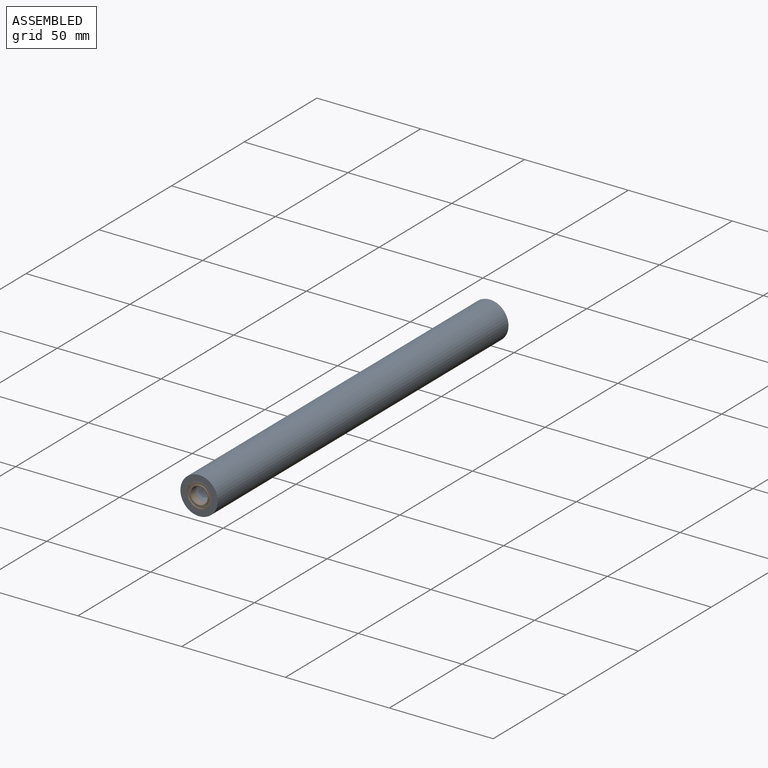
[diagram: assembled view]
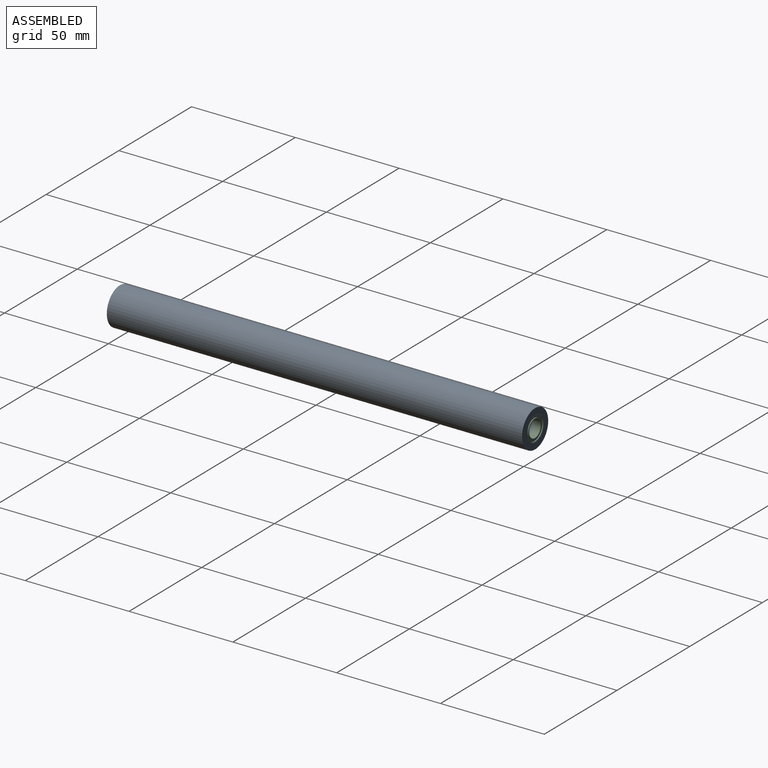
[diagram: assembled view, second angle]
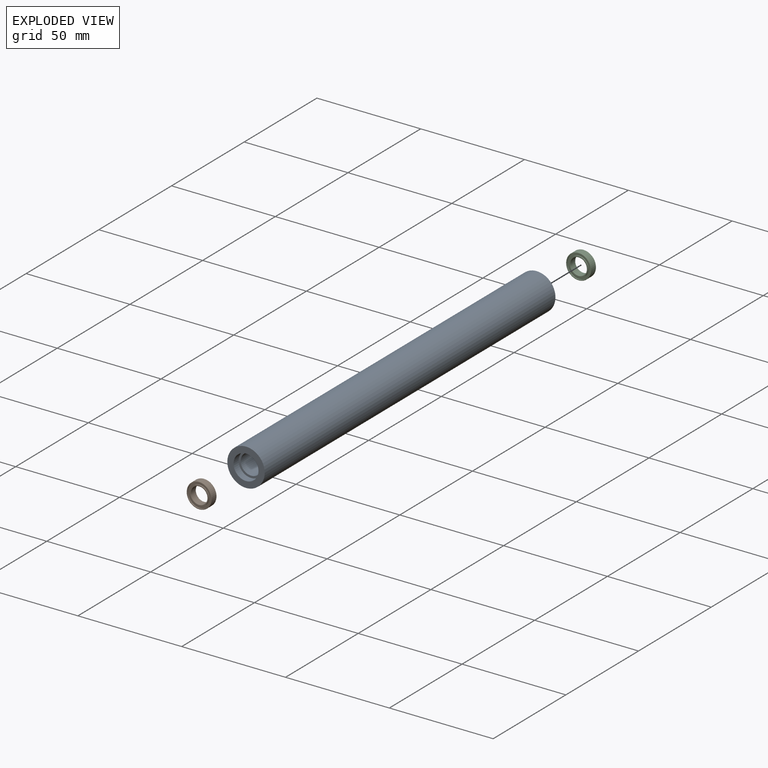
[diagram: exploded view]
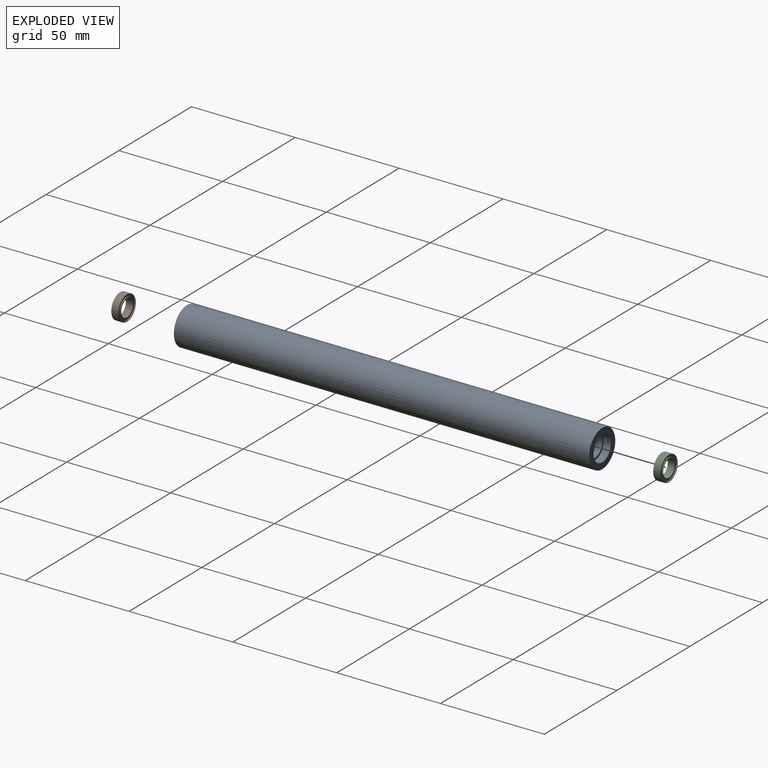
[diagram: exploded view, second angle]
ASSEMBLY  parts=3 mates=4
PART A: 12 faces, bbox 18x200x18 mm
  f0: plane 18x18mm, normal (0,-1,0), area 141.4mm2, adj f1,f2,f10,f11
  f1: cylinder r=9mm len=200mm, axis (0,-1,0), area 5654.9mm2, adj f0,f2,f3
  f2: cylinder r=9mm len=200mm, axis (0,-1,0), area 5654.9mm2, adj f0,f1,f3
  f3: plane 18x18mm, normal (0,1,0), area 141.4mm2, adj f1,f2,f4,f5
  f4: cylinder r=6mm len=12mm, axis (0,-1,0), area 66mm2, adj f3,f5,f6
  f5: cylinder r=6mm len=12mm, axis (0,-1,0), area 66mm2, adj f3,f4,f6
  f6: plane 12x12mm, normal (0,1,0), area 34.6mm2, adj f4,f5,f7,f8
  f7: cylinder r=5mm len=193mm, axis (0,-1,0), area 3031.6mm2, adj f6,f8,f9
  f8: cylinder r=5mm len=193mm, axis (0,-1,0), area 3031.6mm2, adj f6,f7,f9
  f9: plane 12x12mm, normal (0,-1,0), area 34.6mm2, adj f7,f8,f10,f11
  f10: cylinder r=6mm len=12mm, axis (0,-1,0), area 66mm2, adj f0,f9,f11
  f11: cylinder r=6mm len=12mm, axis (0,-1,0), area 66mm2, adj f0,f9,f10
PART B: 26 faces, bbox 3.5x13x13 mm
  f0: plane 9.1x9.1mm, normal (-1,0,0), area 12.2mm2, adj f1,f2,f24,f25
  f1: cylinder r=4.55mm len=9.1mm, axis (-1,0,0), area 7.1mm2, adj f0,f2,f3
  f2: cylinder r=4.55mm len=9.1mm, axis (-1,0,0), area 7.1mm2, adj f0,f1,f3
  f3: plane 11.2x11.2mm, normal (-1,0,0), area 33.5mm2, adj f1,f2,f4,f5
  f4: cylinder r=5.6mm len=11.2mm, axis (-1,0,0), area 8.7mm2, adj f3,f5,f6
  f5: cylinder r=5.6mm len=11.2mm, axis (-1,0,0), area 8.7mm2, adj f3,f4,f6
  f6: plane 11.8x11.8mm, normal (-1,0,0), area 10.8mm2, adj f4,f5,f7,f8
  f7: torus R=5.9mm, axis (1,0,0), area 2.9mm2, adj f6,f8,f10
  f8: torus R=5.9mm, axis (1,0,0), area 2.9mm2, adj f6,f7,f9
  f9: cylinder r=6mm len=12mm, axis (-1,0,0), area 62.2mm2, adj f8,f10,f12
  f10: cylinder r=6mm len=12mm, axis (-1,0,0), area 62.2mm2, adj f7,f9,f11
  f11: torus R=5.9mm, axis (1,0,0), area 2.9mm2, adj f10,f12,f13
  f12: torus R=5.9mm, axis (1,0,0), area 2.9mm2, adj f9,f11,f13
  f13: plane 11.8x11.8mm, normal (1,0,0), area 10.8mm2, adj f11,f12,f14,f15
  f14: cylinder r=5.6mm len=11.2mm, axis (-1,0,0), area 8.7mm2, adj f13,f15,f16
  f15: cylinder r=5.6mm len=11.2mm, axis (-1,0,0), area 8.7mm2, adj f13,f14,f16
  f16: plane 11.2x11.2mm, normal (1,0,0), area 33.5mm2, adj f14,f15,f17,f18
  f17: cylinder r=4.55mm len=9.1mm, axis (-1,0,0), area 7.1mm2, adj f16,f18,f19
  f18: cylinder r=4.55mm len=9.1mm, axis (-1,0,0), area 7.1mm2, adj f16,f17,f19
  f19: plane 9.1x9.1mm, normal (1,0,0), area 12.2mm2, adj f17,f18,f20,f21
  f20: torus R=4.1mm, axis (1,0,0), area 2mm2, adj f19,f21,f23
  f21: torus R=4.1mm, axis (1,0,0), area 2mm2, adj f19,f20,f22
  f22: cylinder r=4mm len=8mm, axis (-1,0,0), area 41.5mm2, adj f21,f23,f25
  f23: cylinder r=4mm len=8mm, axis (-1,0,0), area 41.5mm2, adj f20,f22,f24
  f24: torus R=4.1mm, axis (1,0,0), area 2mm2, adj f0,f23,f25
  f25: torus R=4.1mm, axis (1,0,0), area 2mm2, adj f0,f22,f24
PART C: same geometry as B
PLACE A t=(-10.43,-1.75,-0.14)mm
PLACE B rot(axis=(0,0,-1),90deg) t=(-10.43,-98.25,-0.14)mm
PLACE C rot(axis=(0.71,0.71,0),180deg) t=(-10.43,94.75,-0.14)mm
MATE cylindrical A.f1 <-> C.f1  axis (0,1,0) through (-10.43,98.25,-0.14)mm
MATE planar C.f1 <-> A.f1  axis (0,-1,0) through (-10.43,94.75,-0.14)mm
MATE cylindrical A.f1 <-> B.f1  axis (0,-1,0) through (-10.43,-101.75,-0.14)mm
MATE planar B.f1 <-> A.f1  axis (0,1,0) through (-10.43,-98.25,-0.14)mm
